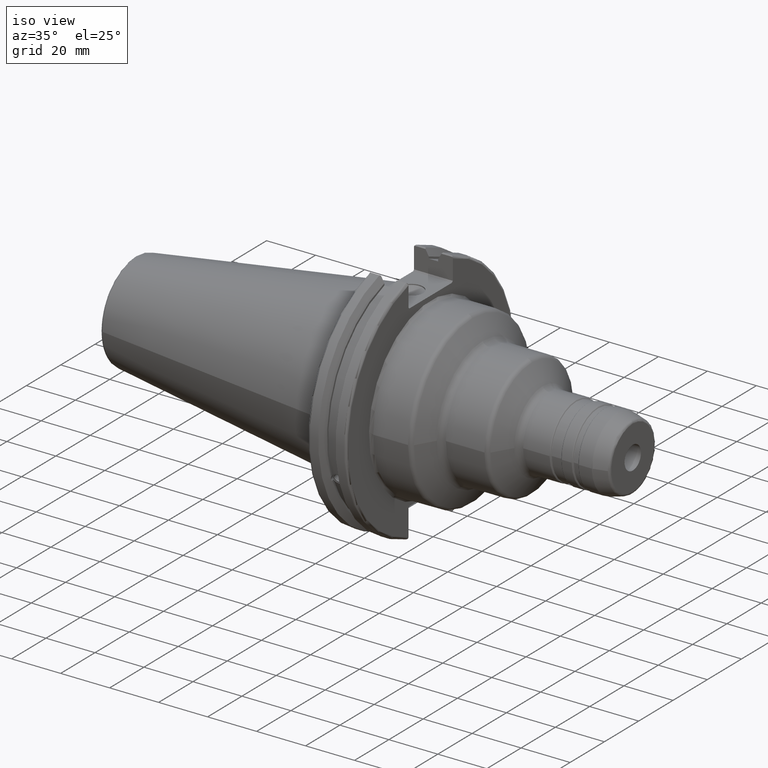
[diagram: clean part render]
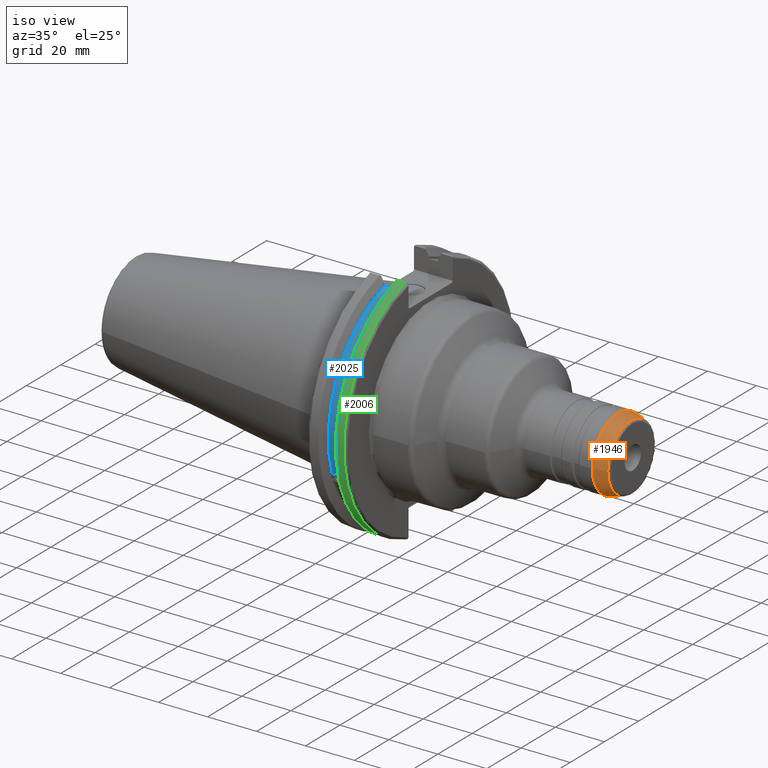
[diagram: same view with three faces highlighted in distinct colors, each labeled with its STEP entity id]
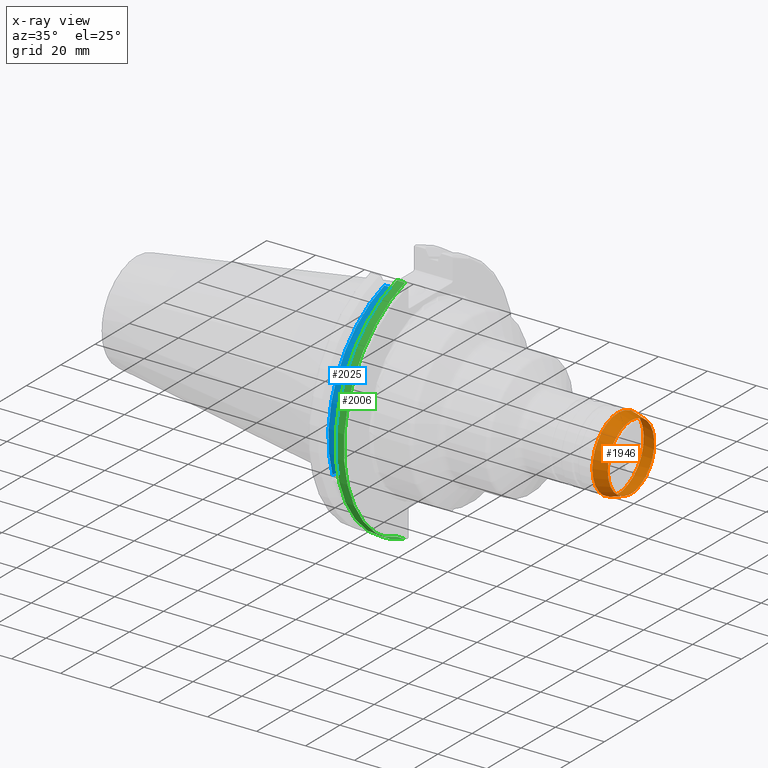
[diagram: x-ray of the same camera — body ghosted, the three highlighted faces saturated]
A machine part, iso view with three faces highlighted in distinct colors.
The next image is the same camera in x-ray (body ghosted, the three faces saturated) — at least one of them is partly hidden behind the body in this view.
Their STEP definitions:

[orange] entity #1946 — the highlighted conical surface has half-angle 15 deg.
#158=CONICAL_SURFACE('',#2155,14.175,0.261799387799148);
#201=FACE_OUTER_BOUND('',#315,.T.);
#315=EDGE_LOOP('',(#1455,#1456,#1457,#1458,#1459,#1460));
#431=LINE('',#3183,#538);
#538=VECTOR('',#2537,14.175);
#698=CIRCLE('',#2152,14.9659258262891);
#699=CIRCLE('',#2153,14.9659258262891);
#701=CIRCLE('',#2156,13.5485988383101);
#702=CIRCLE('',#2157,13.5485988383101);
#829=VERTEX_POINT('',#3174);
#830=VERTEX_POINT('',#3175);
#831=VERTEX_POINT('',#3180);
#832=VERTEX_POINT('',#3181);
#1062=EDGE_CURVE('',#829,#830,#698,.T.);
#1063=EDGE_CURVE('',#830,#829,#699,.T.);
#1065=EDGE_CURVE('',#831,#832,#701,.T.);
#1066=EDGE_CURVE('',#831,#830,#431,.T.);
#1067=EDGE_CURVE('',#832,#831,#702,.T.);
#1455=ORIENTED_EDGE('',*,*,#1065,.F.);
#1456=ORIENTED_EDGE('',*,*,#1066,.T.);
#1457=ORIENTED_EDGE('',*,*,#1062,.F.);
#1458=ORIENTED_EDGE('',*,*,#1063,.F.);
#1459=ORIENTED_EDGE('',*,*,#1066,.F.);
#1460=ORIENTED_EDGE('',*,*,#1067,.F.);
#1946=ADVANCED_FACE('',(#201),#158,.T.);
#2152=AXIS2_PLACEMENT_3D('',#3176,#2527,#2528);
#2153=AXIS2_PLACEMENT_3D('',#3177,#2529,#2530);
#2155=AXIS2_PLACEMENT_3D('',#3179,#2533,#2534);
#2156=AXIS2_PLACEMENT_3D('',#3182,#2535,#2536);
#2157=AXIS2_PLACEMENT_3D('',#3184,#2538,#2539);
#2527=DIRECTION('center_axis',(-1.,0.,0.));
#2528=DIRECTION('ref_axis',(0.,-1.,3.06161699786838E-17));
#2529=DIRECTION('center_axis',(-1.,0.,0.));
#2530=DIRECTION('ref_axis',(0.,-1.,3.06161699786838E-17));
#2533=DIRECTION('center_axis',(-1.,0.,0.));
#2534=DIRECTION('ref_axis',(0.,1.,0.));
#2535=DIRECTION('center_axis',(1.,0.,0.));
#2536=DIRECTION('ref_axis',(0.,-1.,3.06161699786838E-17));
#2537=DIRECTION('',(-0.965925826289069,-0.25881904510252,-3.16961915143175E-17));
#2538=DIRECTION('center_axis',(1.,0.,0.));
#2539=DIRECTION('ref_axis',(0.,-1.,3.06161699786838E-17));
#3174=CARTESIAN_POINT('',(95.5692827150264,-1.83279731594416E-15,14.9659258262891));
#3175=CARTESIAN_POINT('',(95.5692827150265,-14.9659258262891,-1.83279731594416E-15));
#3176=CARTESIAN_POINT('Origin',(95.5692827150265,0.,-2.2909966449302E-15));
#3177=CARTESIAN_POINT('Origin',(95.5692827150265,0.,-2.2909966449302E-15));
#3179=CARTESIAN_POINT('Origin',(98.5210580837557,0.,0.));
#3180=CARTESIAN_POINT('',(100.858819045103,-13.5485988383101,-1.6592248200268E-15));
#3181=CARTESIAN_POINT('',(100.858819045103,-1.6592248200268E-15,13.5485988383101));
#3182=CARTESIAN_POINT('Origin',(100.858819045103,0.,-2.0740310250335E-15));
#3183=CARTESIAN_POINT('',(98.5210580837557,-14.175,-1.73593683779137E-15));
#3184=CARTESIAN_POINT('Origin',(100.858819045103,0.,-2.0740310250335E-15));

[blue] entity #2025 — the highlighted cylindrical surface (partial cylindrical patch) has radius 45.6435 mm, axis along (1, 0, 0).
#121=B_SPLINE_CURVE_WITH_KNOTS('',3,(#3338,#3339,#3340,#3341,#3342,#3343,
#3344,#3345,#3346,#3347,#3348,#3349,#3350,#3351),.UNSPECIFIED.,.F.,.F.,
(4,2,2,2,2,2,4),(0.40154831257669,0.474697095495631,0.553813286063443,0.632929476631254,
0.712045667199066,0.791161857766877,0.864310640685818),.UNSPECIFIED.);
#280=FACE_OUTER_BOUND('',#411,.T.);
#411=EDGE_LOOP('',(#1873,#1874,#1875,#1876));
#491=LINE('',#3850,#598);
#598=VECTOR('',#2773,10.);
#764=CIRCLE('',#2299,45.6435);
#765=CIRCLE('',#2301,45.6435);
#849=VERTEX_POINT('',#3335);
#850=VERTEX_POINT('',#3337);
#943=VERTEX_POINT('',#3847);
#944=VERTEX_POINT('',#3849);
#1091=EDGE_CURVE('',#850,#849,#121,.T.);
#1213=EDGE_CURVE('',#944,#943,#491,.T.);
#1271=EDGE_CURVE('',#943,#850,#764,.T.);
#1272=EDGE_CURVE('',#944,#849,#765,.T.);
#1873=ORIENTED_EDGE('',*,*,#1091,.T.);
#1874=ORIENTED_EDGE('',*,*,#1272,.F.);
#1875=ORIENTED_EDGE('',*,*,#1213,.T.);
#1876=ORIENTED_EDGE('',*,*,#1271,.T.);
#1914=CYLINDRICAL_SURFACE('',#2300,45.6435);
#2025=ADVANCED_FACE('',(#280),#1914,.T.);
#2299=AXIS2_PLACEMENT_3D('',#4016,#2910,#2911);
#2300=AXIS2_PLACEMENT_3D('',#4017,#2912,#2913);
#2301=AXIS2_PLACEMENT_3D('',#4018,#2914,#2915);
#2773=DIRECTION('',(-1.,0.,0.));
#2910=DIRECTION('center_axis',(1.,0.,0.));
#2911=DIRECTION('ref_axis',(0.,0.,-1.));
#2912=DIRECTION('center_axis',(1.,0.,0.));
#2913=DIRECTION('ref_axis',(0.,-0.888619069115281,0.458645996390125));
#2914=DIRECTION('center_axis',(1.,0.,0.));
#2915=DIRECTION('ref_axis',(0.,0.,-1.));
#3335=CARTESIAN_POINT('',(13.0491,-43.1779814500336,-14.7983448449669));
#3337=CARTESIAN_POINT('',(9.2191,-43.1779814500336,-14.7983448449669));
#3338=CARTESIAN_POINT('Ctrl Pts',(9.2191,-43.1779814500335,-14.7983448449669));
#3339=CARTESIAN_POINT('Ctrl Pts',(9.32532177598176,-43.2545173750974,-14.5750315766731));
#3340=CARTESIAN_POINT('Ctrl Pts',(9.47680807557665,-43.3223492818373,-14.3712521044637));
#3341=CARTESIAN_POINT('Ctrl Pts',(9.83560503400179,-43.4340904392251,-14.0300988117073));
#3342=CARTESIAN_POINT('Ctrl Pts',(10.0717203280543,-43.4832903960863,-13.8760243976176));
#3343=CARTESIAN_POINT('Ctrl Pts',(10.5891059167872,-43.54802519266,-13.6715068146718));
#3344=CARTESIAN_POINT('Ctrl Pts',(10.870379364774,-43.5636826100883,-13.6211104428929));
#3345=CARTESIAN_POINT('Ctrl Pts',(11.397820635226,-43.5636826100883,-13.6211104428929));
#3346=CARTESIAN_POINT('Ctrl Pts',(11.6790940832128,-43.54802519266,-13.6715068146718));
#3347=CARTESIAN_POINT('Ctrl Pts',(12.1964796719457,-43.4832903960863,-13.8760243976176));
#3348=CARTESIAN_POINT('Ctrl Pts',(12.4325949659982,-43.4340904392251,-14.0300988117073));
#3349=CARTESIAN_POINT('Ctrl Pts',(12.7913919244233,-43.3223492818373,-14.3712521044637));
#3350=CARTESIAN_POINT('Ctrl Pts',(12.9428782240182,-43.2545173750974,-14.5750315766731));
#3351=CARTESIAN_POINT('Ctrl Pts',(13.0491,-43.1779814500335,-14.7983448449669));
#3847=CARTESIAN_POINT('',(9.2191,-12.95,43.7678716897452));
#3849=CARTESIAN_POINT('',(13.0491,-12.95,43.7678716897452));
#3850=CARTESIAN_POINT('',(11.1341,-12.95,43.7678716897452));
#4016=CARTESIAN_POINT('Origin',(9.2191,0.,0.));
#4017=CARTESIAN_POINT('Origin',(11.1341,0.,0.));
#4018=CARTESIAN_POINT('Origin',(13.0491,0.,0.));

[green] entity #2006 — the highlighted cylindrical surface (partial cylindrical patch) has radius 49.2125 mm, axis along (1, 0, 0).
#261=FACE_OUTER_BOUND('',#390,.T.);
#390=EDGE_LOOP('',(#1790,#1791,#1792,#1793));
#511=LINE('',#3970,#618);
#512=LINE('',#3972,#619);
#618=VECTOR('',#2845,10.);
#619=VECTOR('',#2848,10.);
#717=CIRCLE('',#2189,49.2125);
#745=CIRCLE('',#2243,49.2125);
#863=VERTEX_POINT('',#3420);
#864=VERTEX_POINT('',#3424);
#938=VERTEX_POINT('',#3813);
#939=VERTEX_POINT('',#3822);
#1108=EDGE_CURVE('',#864,#863,#717,.T.);
#1206=EDGE_CURVE('',#938,#939,#745,.T.);
#1252=EDGE_CURVE('',#939,#863,#511,.T.);
#1253=EDGE_CURVE('',#864,#938,#512,.T.);
#1790=ORIENTED_EDGE('',*,*,#1206,.F.);
#1791=ORIENTED_EDGE('',*,*,#1253,.F.);
#1792=ORIENTED_EDGE('',*,*,#1108,.T.);
#1793=ORIENTED_EDGE('',*,*,#1252,.F.);
#1908=CYLINDRICAL_SURFACE('',#2271,49.2125);
#2006=ADVANCED_FACE('',(#261),#1908,.T.);
#2189=AXIS2_PLACEMENT_3D('',#3425,#2614,#2615);
#2243=AXIS2_PLACEMENT_3D('',#3823,#2766,#2767);
#2271=AXIS2_PLACEMENT_3D('',#3971,#2846,#2847);
#2614=DIRECTION('center_axis',(1.,0.,0.));
#2615=DIRECTION('ref_axis',(0.,0.,-1.));
#2766=DIRECTION('center_axis',(1.,0.,0.));
#2767=DIRECTION('ref_axis',(0.,-1.,1.60812264967664E-16));
#2845=DIRECTION('',(-1.,0.,0.));
#2846=DIRECTION('center_axis',(1.,0.,0.));
#2847=DIRECTION('ref_axis',(0.,-1.,1.22464679914735E-16));
#2848=DIRECTION('',(1.,0.,0.));
#3420=CARTESIAN_POINT('',(14.6602090340487,-13.4317035994433,-47.3440544806494));
#3424=CARTESIAN_POINT('',(14.6602090340487,-13.4317035994433,47.3440544806494));
#3425=CARTESIAN_POINT('Origin',(14.6602090340487,0.,0.));
#3813=CARTESIAN_POINT('',(18.05,-13.4317035994433,47.3440544806494));
#3822=CARTESIAN_POINT('',(18.05,-13.4317035994433,-47.3440544806494));
#3823=CARTESIAN_POINT('Origin',(18.05,0.,0.));
#3970=CARTESIAN_POINT('',(16.8551045170244,-13.4317035994433,-47.3440544806494));
#3971=CARTESIAN_POINT('Origin',(16.8551045170244,0.,0.));
#3972=CARTESIAN_POINT('',(16.8551045170244,-13.4317035994433,47.3440544806494));